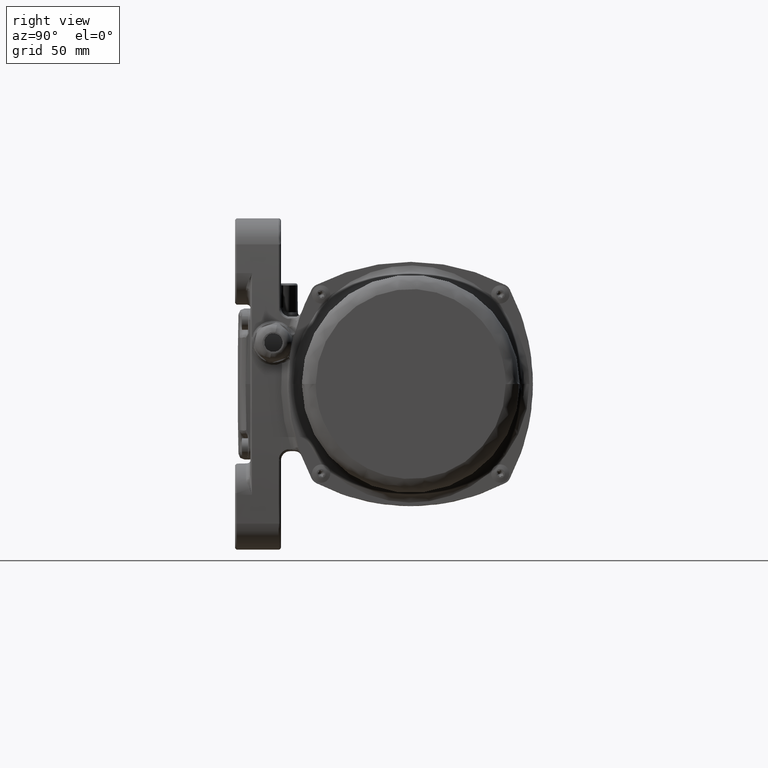
[diagram: clean part render]
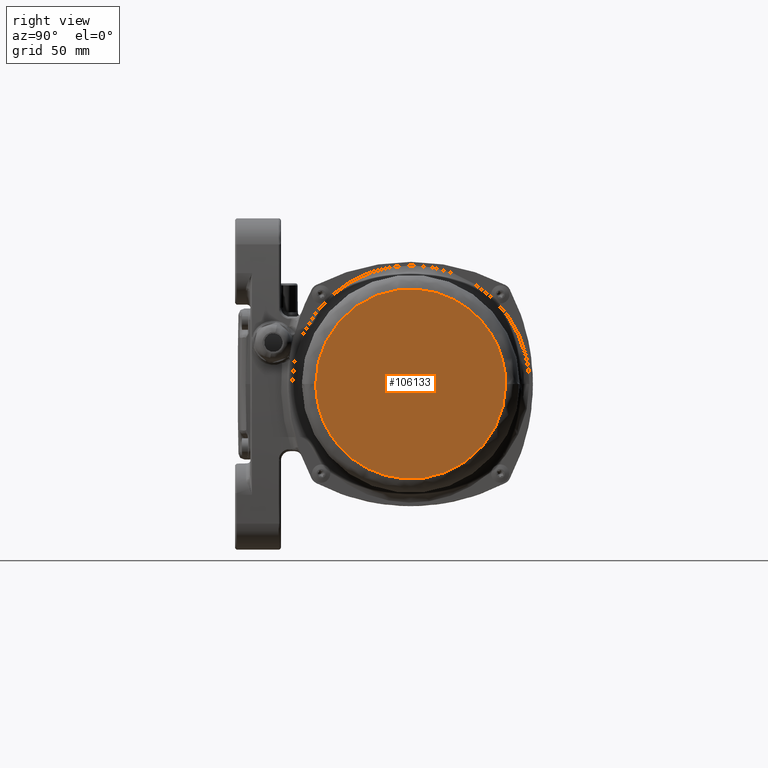
[diagram: same view with one face highlighted and labeled with its STEP entity id]
A machine part, right view. The second image highlights one B-rep face of the part: STEP entity #106133.
In plain terms, the highlighted planar face has unit normal (1, 0, 0).
Its self-contained STEP definition (entity closure, byte-faithful):
#5272 = PLANE ( 'NONE',  #79997 ) ;
#8633 = CARTESIAN_POINT ( 'NONE',  ( 190.0000000000000000, 177.2000000000030000, -8.169598358853440200E-012 ) ) ;
#10166 = ORIENTED_EDGE ( 'NONE', *, *, #37045, .F. ) ;
#14910 =( BOUNDED_CURVE ( )  B_SPLINE_CURVE ( 3, ( #20470, #100679, #55884, #144931 ),
 .UNSPECIFIED., .F., .F. ) 
 B_SPLINE_CURVE_WITH_KNOTS ( ( 4, 4 ),
 ( 0.0000000000000000000, 1.000000000000000000 ),
 .UNSPECIFIED. ) 
 CURVE ( )  GEOMETRIC_REPRESENTATION_ITEM ( )  RATIONAL_B_SPLINE_CURVE ( ( 1.000000000000000000, 0.3333333333333324800, 0.3333333333333324800, 1.000000000000000000 ) ) 
 REPRESENTATION_ITEM ( '' )  );
#18951 = EDGE_LOOP ( 'NONE', ( #137169, #10166 ) ) ;
#20470 = CARTESIAN_POINT ( 'NONE',  ( 190.0000000000135000, 52.80000000001430000, -8.168661307964870800E-012 ) ) ;
#37045 = EDGE_CURVE ( 'NONE', #58959, #139186, #14910, .T. ) ;
#41197 = CARTESIAN_POINT ( 'NONE',  ( 190.0000000000007400, 177.2000000000031200, -124.3999999999969200 ) ) ;
#53219 = CARTESIAN_POINT ( 'NONE',  ( 190.0000000000000000, 177.2000000000030000, -8.169598358853440200E-012 ) ) ;
#55884 = CARTESIAN_POINT ( 'NONE',  ( 190.0000000000007700, 177.2000000000026300, 124.3999999999808400 ) ) ;
#58959 = VERTEX_POINT ( 'NONE', #134340 ) ;
#62114 = EDGE_CURVE ( 'NONE', #139186, #58959, #128385, .T. ) ;
#71763 = DIRECTION ( 'NONE',  ( 1.000000000000000000, 1.023412744556431900E-013, 5.620270106085739700E-017 ) ) ;
#73712 = DIRECTION ( 'NONE',  ( 1.023412744556431900E-013, -1.000000000000000000, -5.551115123125209500E-017 ) ) ;
#79997 = AXIS2_PLACEMENT_3D ( 'NONE', #95418, #71763, #73712 ) ;
#85460 = CARTESIAN_POINT ( 'NONE',  ( 190.0000000000135000, 52.80000000001430000, -8.168661307964870800E-012 ) ) ;
#95418 = CARTESIAN_POINT ( 'NONE',  ( 190.0000000000145000, 43.60000000000879800, -8.169172010556200700E-012 ) ) ;
#100679 = CARTESIAN_POINT ( 'NONE',  ( 190.0000000000135000, 52.80000000001367500, 124.3999999999804500 ) ) ;
#106133 = ADVANCED_FACE ( 'NONE', ( #117193 ), #5272, .T. ) ;
#117193 = FACE_OUTER_BOUND ( 'NONE', #18951, .T. ) ;
#128385 =( BOUNDED_CURVE ( )  B_SPLINE_CURVE ( 3, ( #8633, #41197, #143482, #85460 ),
 .UNSPECIFIED., .F., .F. ) 
 B_SPLINE_CURVE_WITH_KNOTS ( ( 4, 4 ),
 ( 0.0000000000000000000, 1.000000000000000000 ),
 .UNSPECIFIED. ) 
 CURVE ( )  GEOMETRIC_REPRESENTATION_ITEM ( )  RATIONAL_B_SPLINE_CURVE ( ( 1.000000000000000000, 0.3333333333333327600, 0.3333333333333327600, 1.000000000000000000 ) ) 
 REPRESENTATION_ITEM ( '' )  );
#134340 = CARTESIAN_POINT ( 'NONE',  ( 190.0000000000135000, 52.80000000001430000, -8.168661307964870800E-012 ) ) ;
#137169 = ORIENTED_EDGE ( 'NONE', *, *, #62114, .F. ) ;
#139186 = VERTEX_POINT ( 'NONE', #53219 ) ;
#143482 = CARTESIAN_POINT ( 'NONE',  ( 190.0000000000135000, 52.80000000001425100, -124.3999999999970100 ) ) ;
#144931 = CARTESIAN_POINT ( 'NONE',  ( 190.0000000000000000, 177.2000000000030000, -8.169598358853440200E-012 ) ) ;